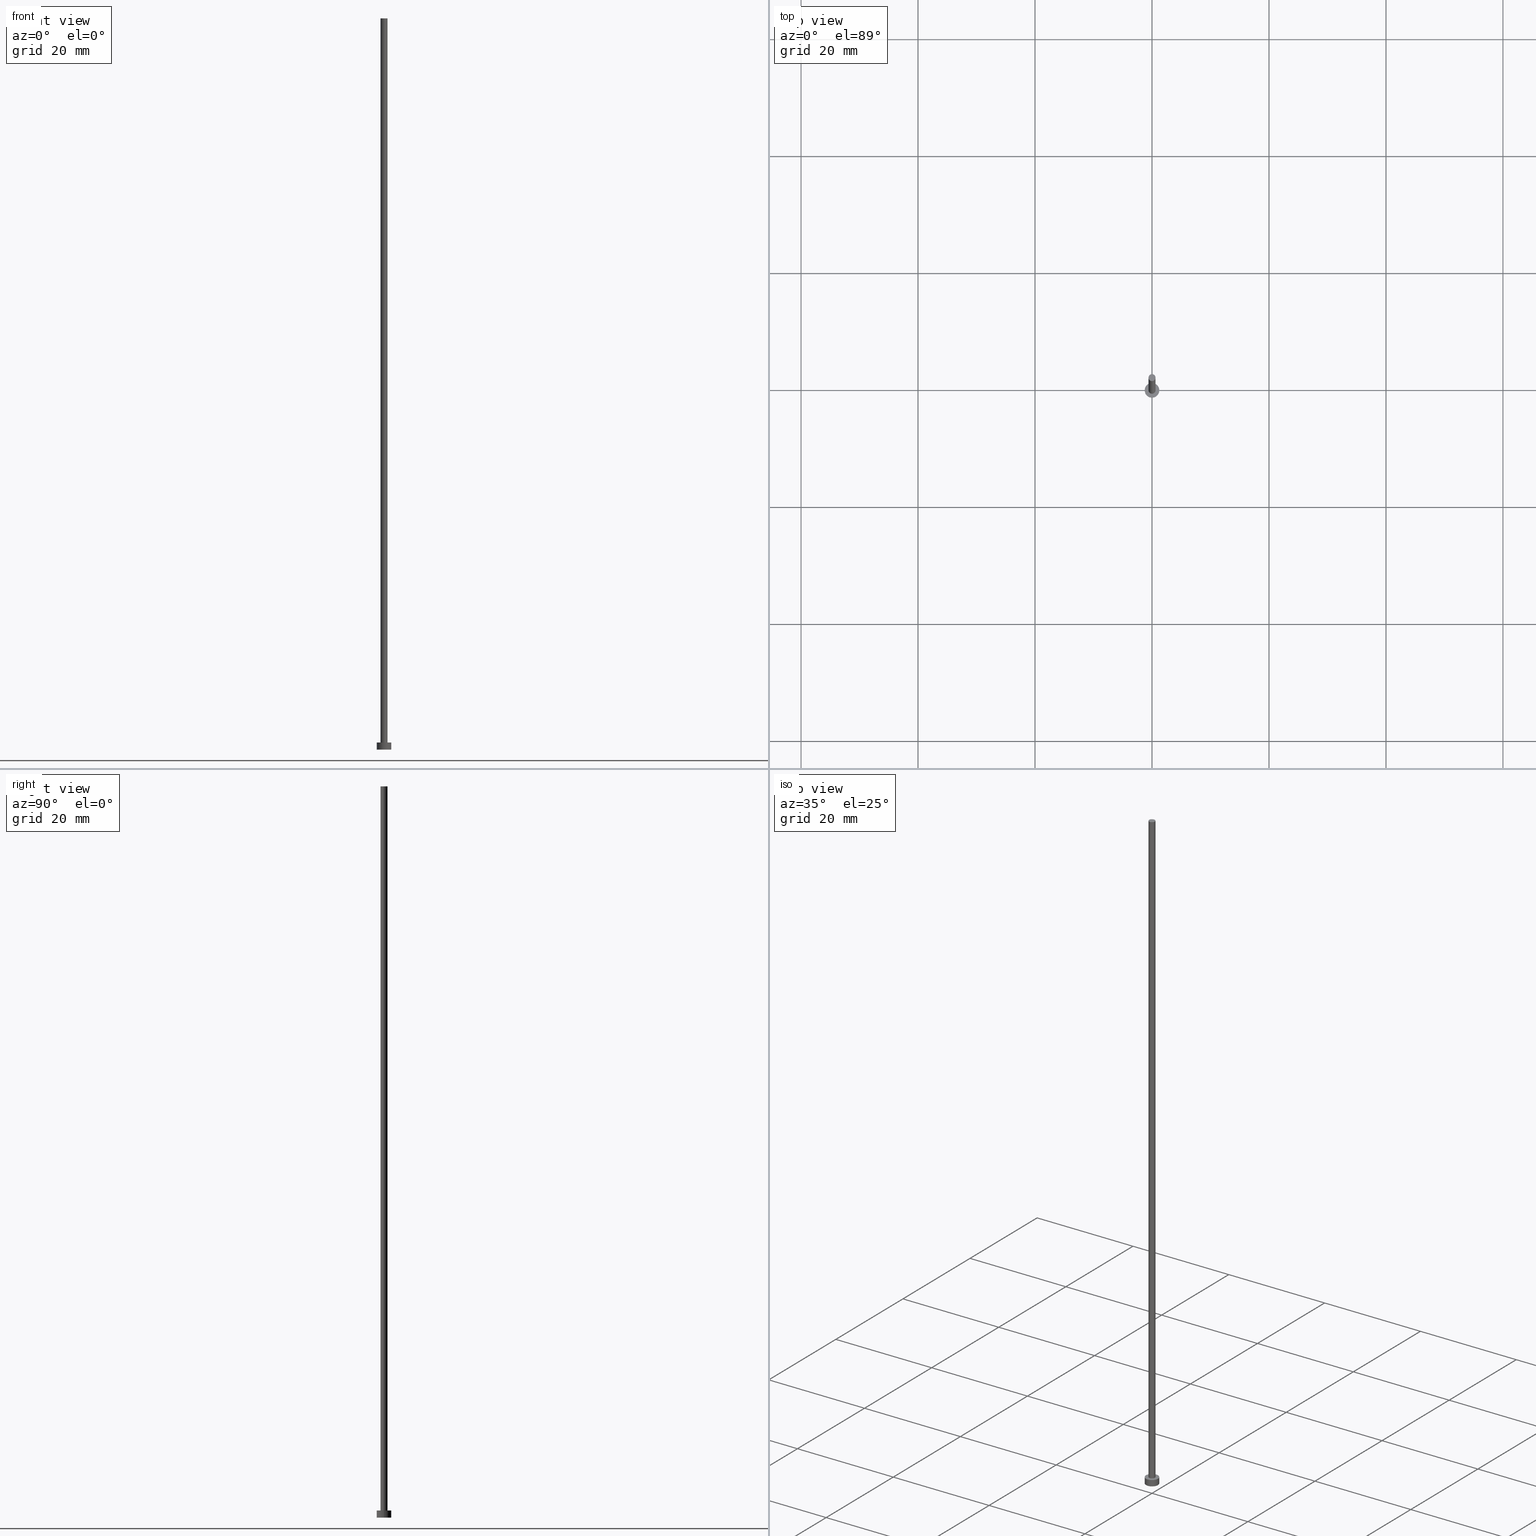
[diagram: canonical four-view strip — front | top / right | iso, engineering-drawing reading convention]
A machine part, canonical four-view strip (front | top / right | iso — engineering-drawing reading convention). The complete STEP part file that produces these views, byte-faithful:
ISO-10303-21;
HEADER;
FILE_DESCRIPTION (( 'STEP AP203' ),
    '1' );
FILE_NAME ('a9b1.STEP',
    '2023-02-13T15:26:53',
    ( '' ),
    ( '' ),
    'SwSTEP 2.0',
    'SolidWorks 2019',
    '' );
FILE_SCHEMA (( 'CONFIG_CONTROL_DESIGN' ));
ENDSEC;

DATA;
#1 = PLANE ( 'NONE',  #202 ) ;
#2 = DIRECTION ( 'NONE',  ( 1.000000000000000000, 0.000000000000000000, 0.000000000000000000 ) ) ;
#3 = LOCAL_TIME ( 16, 26, 53.00000000000000000, #11 ) ;
#4 = ORIENTED_EDGE ( 'NONE', *, *, #238, .F. ) ;
#5 = CC_DESIGN_PERSON_AND_ORGANIZATION_ASSIGNMENT ( #32, #9, ( #145 ) ) ;
#6 = CALENDAR_DATE ( 2023, 13, 2 ) ;
#7 = ORIENTED_EDGE ( 'NONE', *, *, #84, .T. ) ;
#8 = CIRCLE ( 'NONE', #198, 1.250000000000000000 ) ;
#9 = PERSON_AND_ORGANIZATION_ROLE ( 'creator' ) ;
#10 = DATE_AND_TIME ( #83, #210 ) ;
#11 = COORDINATED_UNIVERSAL_TIME_OFFSET ( 1, 0, .AHEAD. ) ;
#12 = EDGE_CURVE ( 'NONE', #224, #87, #51, .T. ) ;
#13 = DIRECTION ( 'NONE',  ( 1.000000000000000000, 0.000000000000000000, 0.000000000000000000 ) ) ;
#14 = VERTEX_POINT ( 'NONE', #35 ) ;
#15 = EDGE_LOOP ( 'NONE', ( #92, #162 ) ) ;
#16 = VECTOR ( 'NONE', #76, 1000.000000000000000 ) ;
#17 = ORIENTED_EDGE ( 'NONE', *, *, #43, .F. ) ;
#18 = CARTESIAN_POINT ( 'NONE',  ( 0.000000000000000000, 0.000000000000000000, 125.0000000000000000 ) ) ;
#19 = CC_DESIGN_SECURITY_CLASSIFICATION ( #86, ( #145 ) ) ;
#20 = FACE_OUTER_BOUND ( 'NONE', #113, .T. ) ;
#21 = DIRECTION ( 'NONE',  ( 1.000000000000000000, 0.000000000000000000, -0.000000000000000000 ) ) ;
#22 = CC_DESIGN_PERSON_AND_ORGANIZATION_ASSIGNMENT ( #219, #165, ( #86 ) ) ;
#23 = APPLICATION_CONTEXT ( 'configuration controlled 3d designs of mechanical parts and assemblies' ) ;
#24 = DIRECTION ( 'NONE',  ( 0.000000000000000000, 0.000000000000000000, 1.000000000000000000 ) ) ;
#25 = APPROVAL_ROLE ( '' ) ;
#26 = EDGE_CURVE ( 'NONE', #118, #224, #157, .T. ) ;
#27 = APPLICATION_PROTOCOL_DEFINITION ( 'international standard', 'config_control_design', 1994, #241 ) ;
#28 = CALENDAR_DATE ( 2023, 13, 2 ) ;
#29 = PERSON ( 'NEUR�EN�', 'NEUR�EN�', 'NEUR�EN�', ('NEUR�EN�'), ('NEUR�EN�'), ('NEUR�EN�') ) ;
#30 = APPROVAL_PERSON_ORGANIZATION ( #139, #49, #160 ) ;
#31 = EDGE_CURVE ( 'NONE', #14, #205, #8, .T. ) ;
#32 = PERSON_AND_ORGANIZATION ( #29, #187 ) ;
#33 = CYLINDRICAL_SURFACE ( 'NONE', #59, 0.5999999999999999778 ) ;
#34 = VERTEX_POINT ( 'NONE', #172 ) ;
#35 = CARTESIAN_POINT ( 'NONE',  ( 1.250000000000000000, 1.530808498934191571E-16, 1.199999999999999956 ) ) ;
#36 = DIRECTION ( 'NONE',  ( -1.000000000000000000, 0.000000000000000000, 0.000000000000000000 ) ) ;
#37 = AXIS2_PLACEMENT_3D ( 'NONE', #18, #93, #97 ) ;
#38 = VERTEX_POINT ( 'NONE', #128 ) ;
#39 = DIRECTION ( 'NONE',  ( -0.000000000000000000, -0.000000000000000000, -1.000000000000000000 ) ) ;
#40 = CARTESIAN_POINT ( 'NONE',  ( 0.000000000000000000, 0.000000000000000000, 125.0000000000000000 ) ) ;
#41 = AXIS2_PLACEMENT_3D ( 'NONE', #180, #133, #2 ) ;
#42 = CIRCLE ( 'NONE', #94, 0.5999999999999999778 ) ;
#43 = EDGE_CURVE ( 'NONE', #87, #38, #89, .T. ) ;
#44 = APPLICATION_PROTOCOL_DEFINITION ( 'international standard', 'config_control_design', 1994, #23 ) ;
#45 = FACE_OUTER_BOUND ( 'NONE', #15, .T. ) ;
#46 = ADVANCED_FACE ( 'NONE', ( #188 ), #207, .T. ) ;
#47 = SHAPE_DEFINITION_REPRESENTATION ( #231, #141 ) ;
#48 = APPROVAL_DATE_TIME ( #244, #173 ) ;
#49 = APPROVAL ( #182, 'NEUR�EN�' ) ;
#50 = DIRECTION ( 'NONE',  ( -0.000000000000000000, -0.000000000000000000, -1.000000000000000000 ) ) ;
#51 = LINE ( 'NONE', #248, #16 ) ;
#52 = ORIENTED_EDGE ( 'NONE', *, *, #235, .F. ) ;
#53 = APPROVAL_PERSON_ORGANIZATION ( #163, #201, #25 ) ;
#54 = EDGE_LOOP ( 'NONE', ( #211, #169, #125, #150 ) ) ;
#55 = EDGE_CURVE ( 'NONE', #14, #34, #250, .T. ) ;
#56 = AXIS2_PLACEMENT_3D ( 'NONE', #40, #24, #78 ) ;
#57 = CARTESIAN_POINT ( 'NONE',  ( -1.250000000000000000, 0.000000000000000000, 0.000000000000000000 ) ) ;
#58 = FACE_OUTER_BOUND ( 'NONE', #245, .T. ) ;
#59 = AXIS2_PLACEMENT_3D ( 'NONE', #229, #50, #36 ) ;
#60 = MECHANICAL_CONTEXT ( 'NONE', #23, 'mechanical' ) ;
#61 = LOCAL_TIME ( 16, 26, 53.00000000000000000, #221 ) ;
#62 = COORDINATED_UNIVERSAL_TIME_OFFSET ( 1, 0, .AHEAD. ) ;
#63 = PERSON_AND_ORGANIZATION_ROLE ( 'creator' ) ;
#64 = AXIS2_PLACEMENT_3D ( 'NONE', #195, #115, #21 ) ;
#65 = PERSON_AND_ORGANIZATION_ROLE ( 'design_supplier' ) ;
#66 = EDGE_LOOP ( 'NONE', ( #209, #85, #240, #96 ) ) ;
#67 = CC_DESIGN_DATE_AND_TIME_ASSIGNMENT ( #10, #140, ( #225 ) ) ;
#68 = VERTEX_POINT ( 'NONE', #57 ) ;
#69 = ADVANCED_FACE ( 'NONE', ( #149 ), #33, .T. ) ;
#70 = AXIS2_PLACEMENT_3D ( 'NONE', #159, #155, #191 ) ;
#71 = LOCAL_TIME ( 16, 26, 53.00000000000000000, #62 ) ;
#72 = CARTESIAN_POINT ( 'NONE',  ( 0.5999999999999999778, 7.347880794884117764E-17, 125.0000000000000000 ) ) ;
#73 = CARTESIAN_POINT ( 'NONE',  ( 0.000000000000000000, 0.000000000000000000, 1.199999999999999956 ) ) ;
#74 = DIRECTION ( 'NONE',  ( -0.000000000000000000, -0.000000000000000000, -1.000000000000000000 ) ) ;
#75 =( GEOMETRIC_REPRESENTATION_CONTEXT ( 3 ) GLOBAL_UNCERTAINTY_ASSIGNED_CONTEXT ( ( #91 ) ) GLOBAL_UNIT_ASSIGNED_CONTEXT ( ( #132, #158, #79 ) ) REPRESENTATION_CONTEXT ( 'NONE', 'WORKASPACE' ) );
#76 = DIRECTION ( 'NONE',  ( -0.000000000000000000, -0.000000000000000000, -1.000000000000000000 ) ) ;
#77 = CARTESIAN_POINT ( 'NONE',  ( 0.000000000000000000, 0.000000000000000000, 125.0000000000000000 ) ) ;
#78 = DIRECTION ( 'NONE',  ( 1.000000000000000000, 0.000000000000000000, -0.000000000000000000 ) ) ;
#79 =( NAMED_UNIT ( * ) SI_UNIT ( $, .STERADIAN. ) SOLID_ANGLE_UNIT ( ) );
#80 = CYLINDRICAL_SURFACE ( 'NONE', #197, 1.250000000000000000 ) ;
#81 = CARTESIAN_POINT ( 'NONE',  ( -1.250000000000000000, 0.000000000000000000, 1.199999999999999956 ) ) ;
#82 = AXIS2_PLACEMENT_3D ( 'NONE', #236, #239, #176 ) ;
#83 = CALENDAR_DATE ( 2023, 13, 2 ) ;
#84 = EDGE_CURVE ( 'NONE', #205, #14, #148, .T. ) ;
#85 = ORIENTED_EDGE ( 'NONE', *, *, #222, .F. ) ;
#86 = SECURITY_CLASSIFICATION ( '', '', #223 ) ;
#87 = VERTEX_POINT ( 'NONE', #167 ) ;
#88 = EDGE_CURVE ( 'NONE', #118, #38, #189, .T. ) ;
#89 = CIRCLE ( 'NONE', #213, 0.5999999999999999778 ) ;
#90 = CARTESIAN_POINT ( 'NONE',  ( 0.000000000000000000, 0.000000000000000000, 1.199999999999999956 ) ) ;
#91 = UNCERTAINTY_MEASURE_WITH_UNIT (LENGTH_MEASURE( 1.000000000000000082E-05 ), #132, 'distance_accuracy_value', 'NONE');
#92 = ORIENTED_EDGE ( 'NONE', *, *, #222, .T. ) ;
#93 = DIRECTION ( 'NONE',  ( -0.000000000000000000, -0.000000000000000000, -1.000000000000000000 ) ) ;
#94 = AXIS2_PLACEMENT_3D ( 'NONE', #255, #135, #116 ) ;
#95 = AXIS2_PLACEMENT_3D ( 'NONE', #153, #137, #254 ) ;
#96 = ORIENTED_EDGE ( 'NONE', *, *, #43, .T. ) ;
#97 = DIRECTION ( 'NONE',  ( -1.000000000000000000, 0.000000000000000000, 0.000000000000000000 ) ) ;
#98 = CARTESIAN_POINT ( 'NONE',  ( -0.5999999999999999778, 0.000000000000000000, 125.0000000000000000 ) ) ;
#99 = CARTESIAN_POINT ( 'NONE',  ( 0.000000000000000000, 0.000000000000000000, 0.000000000000000000 ) ) ;
#100 = DIRECTION ( 'NONE',  ( -1.000000000000000000, 0.000000000000000000, 0.000000000000000000 ) ) ;
#101 = PLANE ( 'NONE',  #56 ) ;
#102 = CALENDAR_DATE ( 2023, 13, 2 ) ;
#103 = LOCAL_TIME ( 16, 26, 53.00000000000000000, #181 ) ;
#104 = APPROVAL_DATE_TIME ( #142, #49 ) ;
#105 = DATE_AND_TIME ( #243, #61 ) ;
#106 = CC_DESIGN_APPROVAL ( #173, ( #86 ) ) ;
#107 = DIRECTION ( 'NONE',  ( 0.000000000000000000, 0.000000000000000000, 1.000000000000000000 ) ) ;
#108 = PRODUCT ( 'a9b1', 'a9b1', '', ( #60 ) ) ;
#109 = ORIENTED_EDGE ( 'NONE', *, *, #238, .T. ) ;
#110 = DIRECTION ( 'NONE',  ( 0.000000000000000000, 0.000000000000000000, 1.000000000000000000 ) ) ;
#111 = DIRECTION ( 'NONE',  ( 1.000000000000000000, 0.000000000000000000, 0.000000000000000000 ) ) ;
#112 = MANIFOLD_SOLID_BREP ( 'P�idat vysunut�m3', #123 ) ;
#113 = EDGE_LOOP ( 'NONE', ( #130, #143, #109, #190 ) ) ;
#114 = CIRCLE ( 'NONE', #134, 0.5999999999999999778 ) ;
#115 = DIRECTION ( 'NONE',  ( 0.000000000000000000, 0.000000000000000000, 1.000000000000000000 ) ) ;
#116 = DIRECTION ( 'NONE',  ( 1.000000000000000000, 0.000000000000000000, 0.000000000000000000 ) ) ;
#117 = PERSON_AND_ORGANIZATION_ROLE ( 'design_owner' ) ;
#118 = VERTEX_POINT ( 'NONE', #126 ) ;
#119 = APPROVAL_ROLE ( '' ) ;
#120 = EDGE_CURVE ( 'NONE', #205, #68, #232, .T. ) ;
#121 = ORIENTED_EDGE ( 'NONE', *, *, #12, .F. ) ;
#122 = ORIENTED_EDGE ( 'NONE', *, *, #249, .F. ) ;
#123 = CLOSED_SHELL ( 'NONE', ( #46, #152, #206, #129, #177, #69, #216 ) ) ;
#124 = APPROVAL_DATE_TIME ( #242, #201 ) ;
#125 = ORIENTED_EDGE ( 'NONE', *, *, #120, .T. ) ;
#126 = CARTESIAN_POINT ( 'NONE',  ( 0.5999999999999999778, 7.347880794884117764E-17, 125.0000000000000000 ) ) ;
#127 = VECTOR ( 'NONE', #74, 1000.000000000000000 ) ;
#128 = CARTESIAN_POINT ( 'NONE',  ( 0.5999999999999999778, 7.347880794884117764E-17, 1.199999999999999956 ) ) ;
#129 = ADVANCED_FACE ( 'NONE', ( #208, #58 ), #218, .T. ) ;
#130 = ORIENTED_EDGE ( 'NONE', *, *, #31, .F. ) ;
#131 = CARTESIAN_POINT ( 'NONE',  ( -1.250000000000000000, 0.000000000000000000, 1.199999999999999956 ) ) ;
#132 =( LENGTH_UNIT ( ) NAMED_UNIT ( * ) SI_UNIT ( .MILLI., .METRE. ) );
#133 = DIRECTION ( 'NONE',  ( 0.000000000000000000, 0.000000000000000000, 1.000000000000000000 ) ) ;
#134 = AXIS2_PLACEMENT_3D ( 'NONE', #237, #193, #178 ) ;
#135 = DIRECTION ( 'NONE',  ( 0.000000000000000000, 0.000000000000000000, 1.000000000000000000 ) ) ;
#136 = AXIS2_PLACEMENT_3D ( 'NONE', #77, #233, #147 ) ;
#137 = DIRECTION ( 'NONE',  ( -0.000000000000000000, -0.000000000000000000, -1.000000000000000000 ) ) ;
#138 = PRODUCT_RELATED_PRODUCT_CATEGORY ( 'detail', '', ( #108 ) ) ;
#139 = PERSON_AND_ORGANIZATION ( #29, #187 ) ;
#140 = DATE_TIME_ROLE ( 'creation_date' ) ;
#141 = ADVANCED_BREP_SHAPE_REPRESENTATION ( 'a9b1', ( #112, #70 ), #75 ) ;
#142 = DATE_AND_TIME ( #6, #71 ) ;
#143 = ORIENTED_EDGE ( 'NONE', *, *, #55, .T. ) ;
#144 = PERSON_AND_ORGANIZATION ( #29, #187 ) ;
#145 = PRODUCT_DEFINITION_FORMATION_WITH_SPECIFIED_SOURCE ( 'LIBOVOLN�', '', #108, .NOT_KNOWN. ) ;
#146 = DIRECTION ( 'NONE',  ( -0.000000000000000000, -0.000000000000000000, -1.000000000000000000 ) ) ;
#147 = DIRECTION ( 'NONE',  ( 1.000000000000000000, 0.000000000000000000, 0.000000000000000000 ) ) ;
#148 = CIRCLE ( 'NONE', #171, 1.250000000000000000 ) ;
#149 = FACE_OUTER_BOUND ( 'NONE', #66, .T. ) ;
#150 = ORIENTED_EDGE ( 'NONE', *, *, #249, .T. ) ;
#151 = EDGE_LOOP ( 'NONE', ( #122, #4 ) ) ;
#152 = ADVANCED_FACE ( 'NONE', ( #20 ), #192, .T. ) ;
#153 = CARTESIAN_POINT ( 'NONE',  ( 0.000000000000000000, 0.000000000000000000, 1.199999999999999956 ) ) ;
#154 = DIRECTION ( 'NONE',  ( 0.000000000000000000, 0.000000000000000000, 1.000000000000000000 ) ) ;
#155 = DIRECTION ( 'NONE',  ( 0.000000000000000000, 0.000000000000000000, 1.000000000000000000 ) ) ;
#156 = CC_DESIGN_PERSON_AND_ORGANIZATION_ASSIGNMENT ( #183, #63, ( #225 ) ) ;
#157 = CIRCLE ( 'NONE', #136, 0.5999999999999999778 ) ;
#158 =( NAMED_UNIT ( * ) PLANE_ANGLE_UNIT ( ) SI_UNIT ( $, .RADIAN. ) );
#159 = CARTESIAN_POINT ( 'NONE',  ( 0.000000000000000000, 0.000000000000000000, 0.000000000000000000 ) ) ;
#160 = APPROVAL_ROLE ( '' ) ;
#161 = DATE_TIME_ROLE ( 'classification_date' ) ;
#162 = ORIENTED_EDGE ( 'NONE', *, *, #26, .T. ) ;
#163 = PERSON_AND_ORGANIZATION ( #29, #187 ) ;
#164 = EDGE_LOOP ( 'NONE', ( #166, #251, #186, #121 ) ) ;
#165 = PERSON_AND_ORGANIZATION_ROLE ( 'classification_officer' ) ;
#166 = ORIENTED_EDGE ( 'NONE', *, *, #26, .F. ) ;
#167 = CARTESIAN_POINT ( 'NONE',  ( -0.5999999999999999778, 0.000000000000000000, 1.199999999999999956 ) ) ;
#168 = CC_DESIGN_PERSON_AND_ORGANIZATION_ASSIGNMENT ( #144, #65, ( #145 ) ) ;
#169 = ORIENTED_EDGE ( 'NONE', *, *, #84, .F. ) ;
#170 = EDGE_LOOP ( 'NONE', ( #17, #52 ) ) ;
#171 = AXIS2_PLACEMENT_3D ( 'NONE', #90, #107, #13 ) ;
#172 = CARTESIAN_POINT ( 'NONE',  ( 1.250000000000000000, 1.530808498934191571E-16, 0.000000000000000000 ) ) ;
#173 = APPROVAL ( #200, 'NEUR�EN�' ) ;
#174 = FACE_OUTER_BOUND ( 'NONE', #54, .T. ) ;
#175 = VECTOR ( 'NONE', #146, 1000.000000000000000 ) ;
#176 = DIRECTION ( 'NONE',  ( 1.000000000000000000, 0.000000000000000000, 0.000000000000000000 ) ) ;
#177 = ADVANCED_FACE ( 'NONE', ( #196 ), #1, .F. ) ;
#178 = DIRECTION ( 'NONE',  ( 1.000000000000000000, 0.000000000000000000, 0.000000000000000000 ) ) ;
#179 = DIRECTION ( 'NONE',  ( 1.000000000000000000, 0.000000000000000000, -0.000000000000000000 ) ) ;
#180 = CARTESIAN_POINT ( 'NONE',  ( 0.000000000000000000, 0.000000000000000000, 0.000000000000000000 ) ) ;
#181 = COORDINATED_UNIVERSAL_TIME_OFFSET ( 1, 0, .AHEAD. ) ;
#182 = APPROVAL_STATUS ( 'not_yet_approved' ) ;
#183 = PERSON_AND_ORGANIZATION ( #29, #187 ) ;
#184 = CARTESIAN_POINT ( 'NONE',  ( 0.000000000000000000, 0.000000000000000000, 1.199999999999999956 ) ) ;
#185 = CC_DESIGN_PERSON_AND_ORGANIZATION_ASSIGNMENT ( #215, #117, ( #108 ) ) ;
#186 = ORIENTED_EDGE ( 'NONE', *, *, #235, .T. ) ;
#187 = ORGANIZATION ( 'NEUR�EN�', 'NEUR�EN�', '' ) ;
#188 = FACE_OUTER_BOUND ( 'NONE', #164, .T. ) ;
#189 = LINE ( 'NONE', #72, #175 ) ;
#190 = ORIENTED_EDGE ( 'NONE', *, *, #120, .F. ) ;
#191 = DIRECTION ( 'NONE',  ( 1.000000000000000000, 0.000000000000000000, 0.000000000000000000 ) ) ;
#192 = CYLINDRICAL_SURFACE ( 'NONE', #95, 1.250000000000000000 ) ;
#193 = DIRECTION ( 'NONE',  ( 0.000000000000000000, 0.000000000000000000, 1.000000000000000000 ) ) ;
#194 = CC_DESIGN_APPROVAL ( #201, ( #225 ) ) ;
#195 = CARTESIAN_POINT ( 'NONE',  ( 0.000000000000000000, 0.000000000000000000, 1.199999999999999956 ) ) ;
#196 = FACE_OUTER_BOUND ( 'NONE', #151, .T. ) ;
#197 = AXIS2_PLACEMENT_3D ( 'NONE', #214, #39, #100 ) ;
#198 = AXIS2_PLACEMENT_3D ( 'NONE', #73, #228, #246 ) ;
#199 = APPROVAL_STATUS ( 'not_yet_approved' ) ;
#200 = APPROVAL_STATUS ( 'not_yet_approved' ) ;
#201 = APPROVAL ( #199, 'NEUR�EN�' ) ;
#202 = AXIS2_PLACEMENT_3D ( 'NONE', #99, #154, #179 ) ;
#203 = COORDINATED_UNIVERSAL_TIME_OFFSET ( 1, 0, .AHEAD. ) ;
#204 = CC_DESIGN_APPROVAL ( #49, ( #145 ) ) ;
#205 = VERTEX_POINT ( 'NONE', #81 ) ;
#206 = ADVANCED_FACE ( 'NONE', ( #174 ), #80, .T. ) ;
#207 = CYLINDRICAL_SURFACE ( 'NONE', #37, 0.5999999999999999778 ) ;
#208 = FACE_BOUND ( 'NONE', #170, .T. ) ;
#209 = ORIENTED_EDGE ( 'NONE', *, *, #88, .F. ) ;
#210 = LOCAL_TIME ( 16, 26, 53.00000000000000000, #203 ) ;
#211 = ORIENTED_EDGE ( 'NONE', *, *, #55, .F. ) ;
#212 = DIRECTION ( 'NONE',  ( -0.000000000000000000, -0.000000000000000000, -1.000000000000000000 ) ) ;
#213 = AXIS2_PLACEMENT_3D ( 'NONE', #184, #110, #111 ) ;
#214 = CARTESIAN_POINT ( 'NONE',  ( 0.000000000000000000, 0.000000000000000000, 1.199999999999999956 ) ) ;
#215 = PERSON_AND_ORGANIZATION ( #29, #187 ) ;
#216 = ADVANCED_FACE ( 'NONE', ( #45 ), #101, .T. ) ;
#217 = APPROVAL_PERSON_ORGANIZATION ( #220, #173, #119 ) ;
#218 = PLANE ( 'NONE',  #64 ) ;
#219 = PERSON_AND_ORGANIZATION ( #29, #187 ) ;
#220 = PERSON_AND_ORGANIZATION ( #29, #187 ) ;
#221 = COORDINATED_UNIVERSAL_TIME_OFFSET ( 1, 0, .AHEAD. ) ;
#222 = EDGE_CURVE ( 'NONE', #224, #118, #42, .T. ) ;
#223 = SECURITY_CLASSIFICATION_LEVEL ( 'unclassified' ) ;
#224 = VERTEX_POINT ( 'NONE', #98 ) ;
#225 = PRODUCT_DEFINITION ( 'NEZN�M�', '', #145, #247 ) ;
#226 = ORIENTED_EDGE ( 'NONE', *, *, #31, .T. ) ;
#227 = CIRCLE ( 'NONE', #41, 1.250000000000000000 ) ;
#228 = DIRECTION ( 'NONE',  ( 0.000000000000000000, 0.000000000000000000, 1.000000000000000000 ) ) ;
#229 = CARTESIAN_POINT ( 'NONE',  ( 0.000000000000000000, 0.000000000000000000, 125.0000000000000000 ) ) ;
#230 = CC_DESIGN_DATE_AND_TIME_ASSIGNMENT ( #105, #161, ( #86 ) ) ;
#231 = PRODUCT_DEFINITION_SHAPE ( 'NONE', 'NONE',  #225 ) ;
#232 = LINE ( 'NONE', #131, #234 ) ;
#233 = DIRECTION ( 'NONE',  ( 0.000000000000000000, 0.000000000000000000, 1.000000000000000000 ) ) ;
#234 = VECTOR ( 'NONE', #212, 1000.000000000000000 ) ;
#235 = EDGE_CURVE ( 'NONE', #38, #87, #114, .T. ) ;
#236 = CARTESIAN_POINT ( 'NONE',  ( 0.000000000000000000, 0.000000000000000000, 0.000000000000000000 ) ) ;
#237 = CARTESIAN_POINT ( 'NONE',  ( 0.000000000000000000, 0.000000000000000000, 1.199999999999999956 ) ) ;
#238 = EDGE_CURVE ( 'NONE', #34, #68, #253, .T. ) ;
#239 = DIRECTION ( 'NONE',  ( 0.000000000000000000, 0.000000000000000000, 1.000000000000000000 ) ) ;
#240 = ORIENTED_EDGE ( 'NONE', *, *, #12, .T. ) ;
#241 = APPLICATION_CONTEXT ( 'configuration controlled 3d designs of mechanical parts and assemblies' ) ;
#242 = DATE_AND_TIME ( #102, #3 ) ;
#243 = CALENDAR_DATE ( 2023, 13, 2 ) ;
#244 = DATE_AND_TIME ( #28, #103 ) ;
#245 = EDGE_LOOP ( 'NONE', ( #7, #226 ) ) ;
#246 = DIRECTION ( 'NONE',  ( 1.000000000000000000, 0.000000000000000000, 0.000000000000000000 ) ) ;
#247 = DESIGN_CONTEXT ( 'detailed design', #241, 'design' ) ;
#248 = CARTESIAN_POINT ( 'NONE',  ( -0.5999999999999999778, 0.000000000000000000, 125.0000000000000000 ) ) ;
#249 = EDGE_CURVE ( 'NONE', #68, #34, #227, .T. ) ;
#250 = LINE ( 'NONE', #252, #127 ) ;
#251 = ORIENTED_EDGE ( 'NONE', *, *, #88, .T. ) ;
#252 = CARTESIAN_POINT ( 'NONE',  ( 1.250000000000000000, 1.530808498934191571E-16, 1.199999999999999956 ) ) ;
#253 = CIRCLE ( 'NONE', #82, 1.250000000000000000 ) ;
#254 = DIRECTION ( 'NONE',  ( -1.000000000000000000, 0.000000000000000000, 0.000000000000000000 ) ) ;
#255 = CARTESIAN_POINT ( 'NONE',  ( 0.000000000000000000, 0.000000000000000000, 125.0000000000000000 ) ) ;
ENDSEC;
END-ISO-10303-21;
